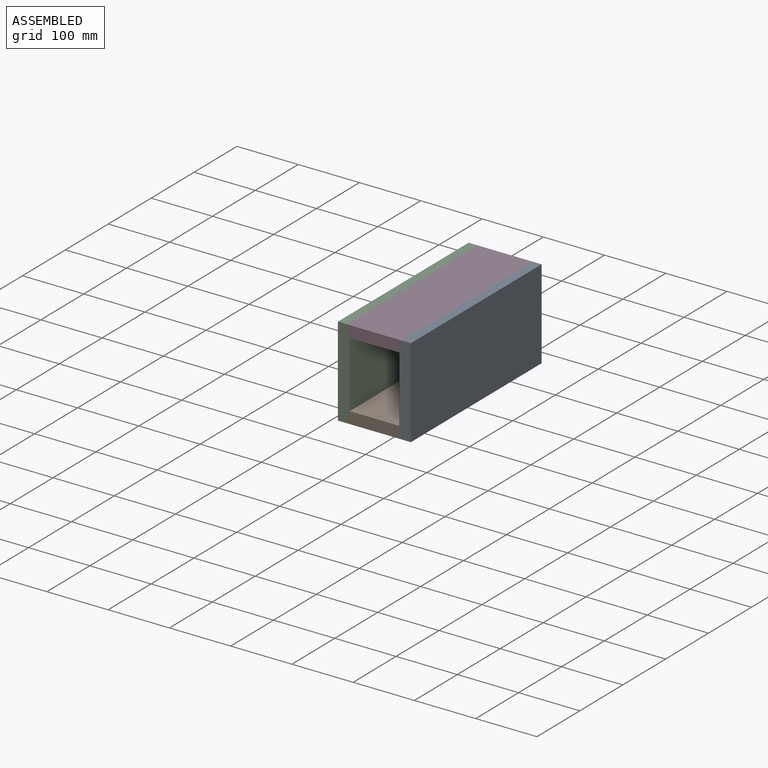
[diagram: assembled view]
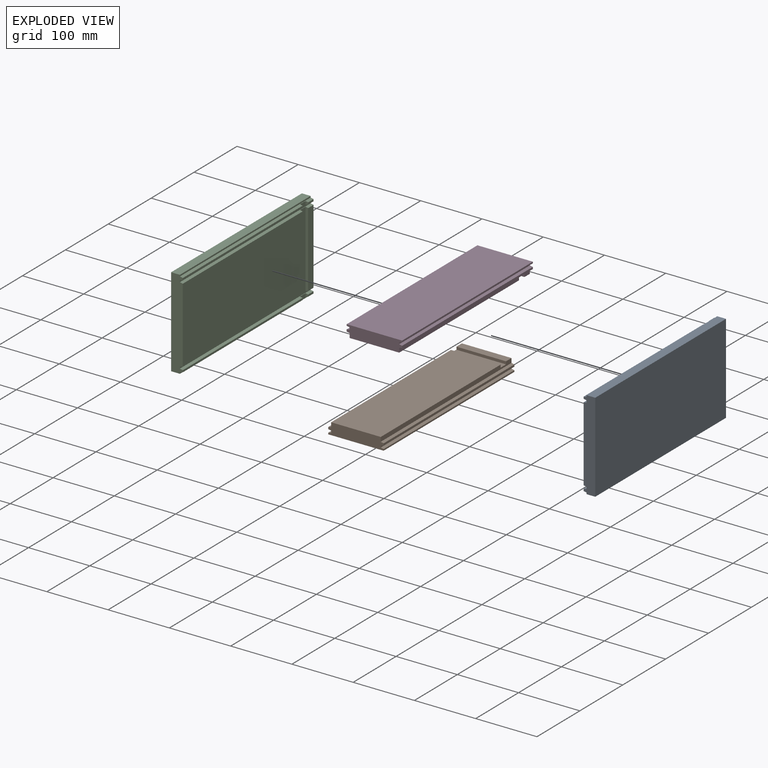
[diagram: exploded view]
GUIDED TOUR — MATED ASSEMBLY (Onshape document 10cae2b9b5128c121bfe2c12, AutoMate assembly 10cae2b9b5128c121bfe2c12_10c8b6ccea02d22713d27644_c6a1b282c4f7143b2811bf77_default)

This assembly has 4 components, labeled P0..P3 below (a component is one placed occurrence of a part; the same part can appear more than once), held together by 3 mates. A mate is a constraint between two components; its type names the relative motion it leaves free:
  FASTENED — locks the two components together rigidly (no relative motion).
Axis/direction vectors are unit vectors and 'through' points are millimeter coordinates, both in the assembly's world frame.

MATES
  1. FASTENED "Fastened 2": P2 <-> P1, direction (0.000, 1.000, 0.000) through (229.31, 161.94, -141.19) mm
  2. FASTENED "Fastened 3": P3 <-> P0, direction (0.000, 1.000, 0.000) through (319.80, 161.94, 4.86) mm
  3. FASTENED "Fastened 1": P2 <-> P3, direction (0.000, 1.000, 0.000) through (229.31, 161.94, 4.86) mm

ASSEMBLY ORDER
  1. P3 — the base component [order verified]
  2. P1 [order verified]
  3. P0 [order verified]
  4. P2 [order verified]
Order-tag legend:
  [order verified] — this step's position reverses a verified removal order: the component was checked to insert without passing through the ones already placed.

Of the 4 components, 4 carry the full construction recipe — the FeatureScript program that regenerates the part's solid from scratch; the rest are supplied as boundary geometry only.
Each toured component is shown spotlighted twice — in the assembled view, then in the exploded view, where a leader line traces a displaced component back to its assembled socket (saturated green if recipe-attached, orange if geometry-only; every other component desaturated gray) — followed by its recipe or geometry summary and the mates that hold it.
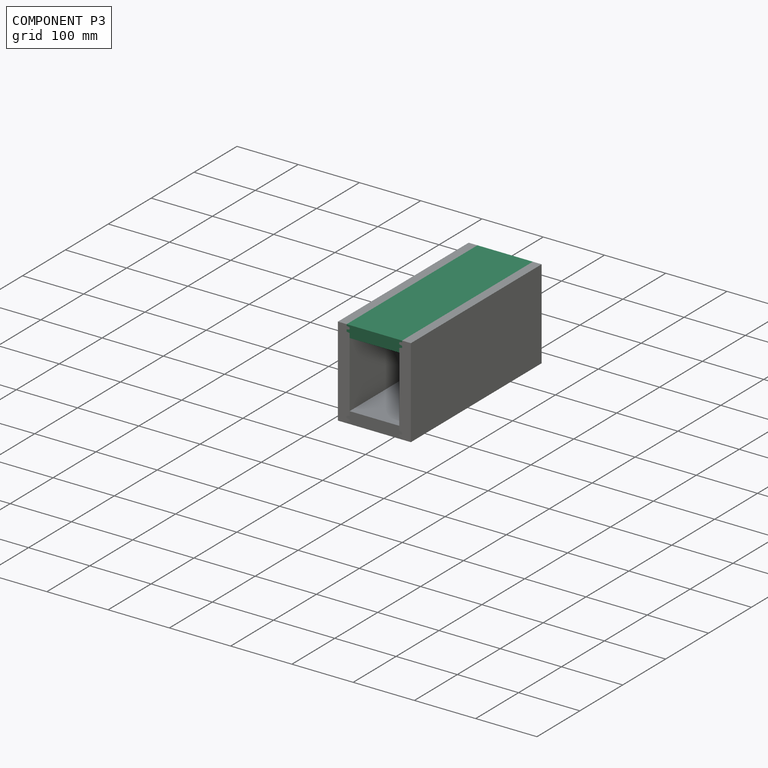
[diagram: component P3 — assembled]
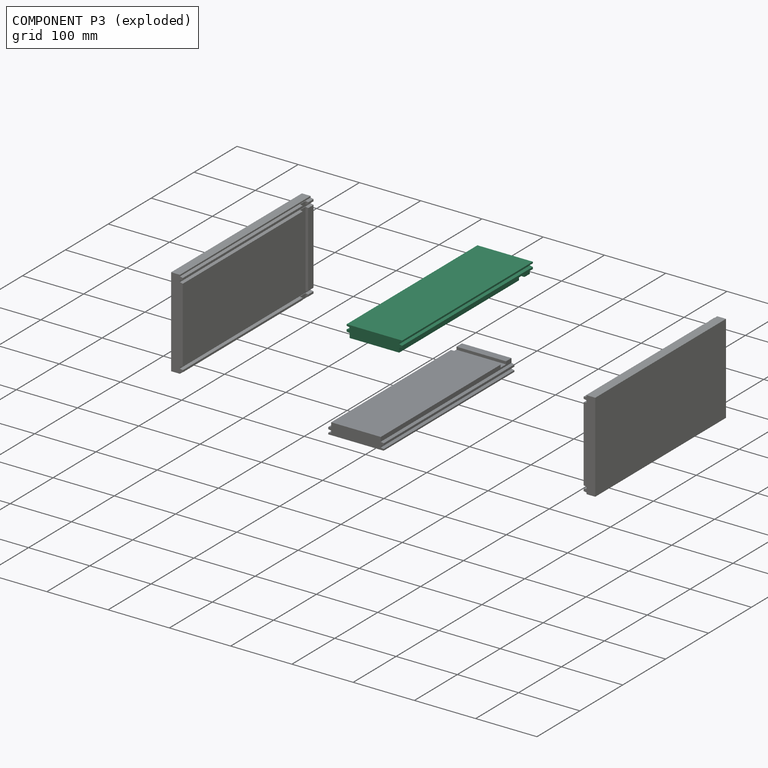
[diagram: component P3 — exploded]
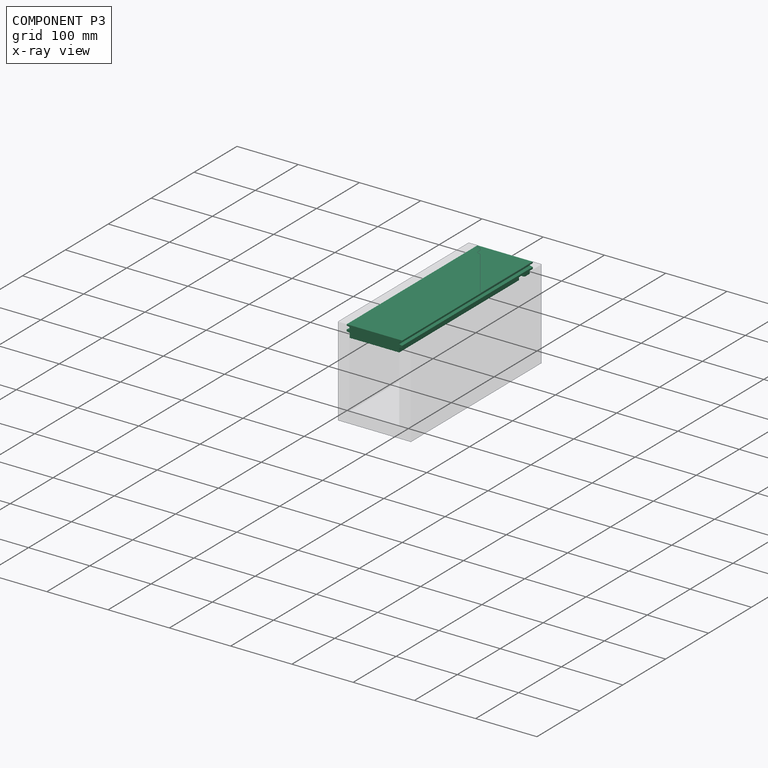
[diagram: component P3 — x-ray view]
COMPONENT P3 — same part as P1 (CADFS 00622176); its construction recipe is shown at P1.
Held by: FASTENED mate "Fastened 3" to P0; FASTENED mate "Fastened 1" to P2.
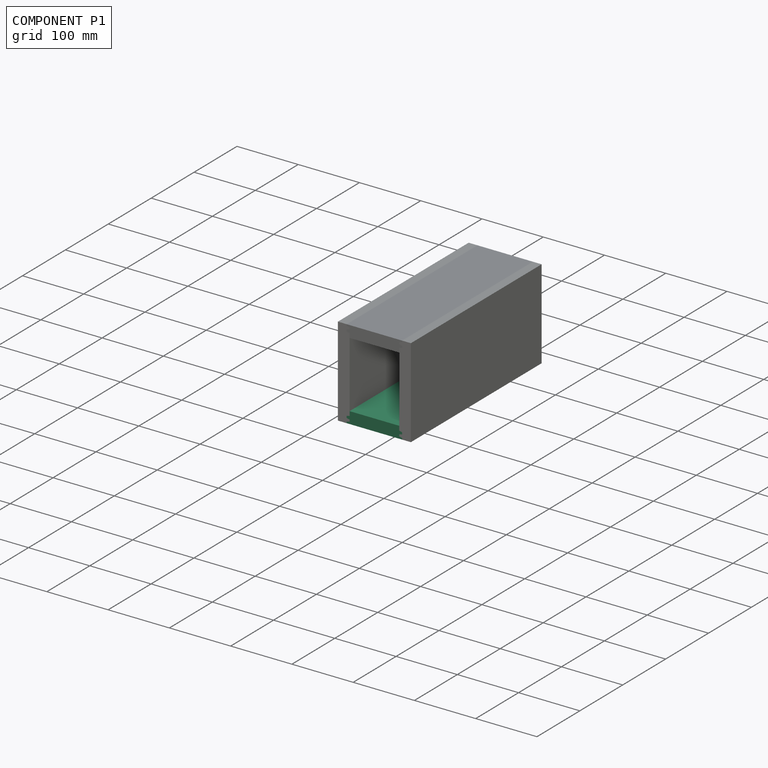
[diagram: component P1 — assembled]
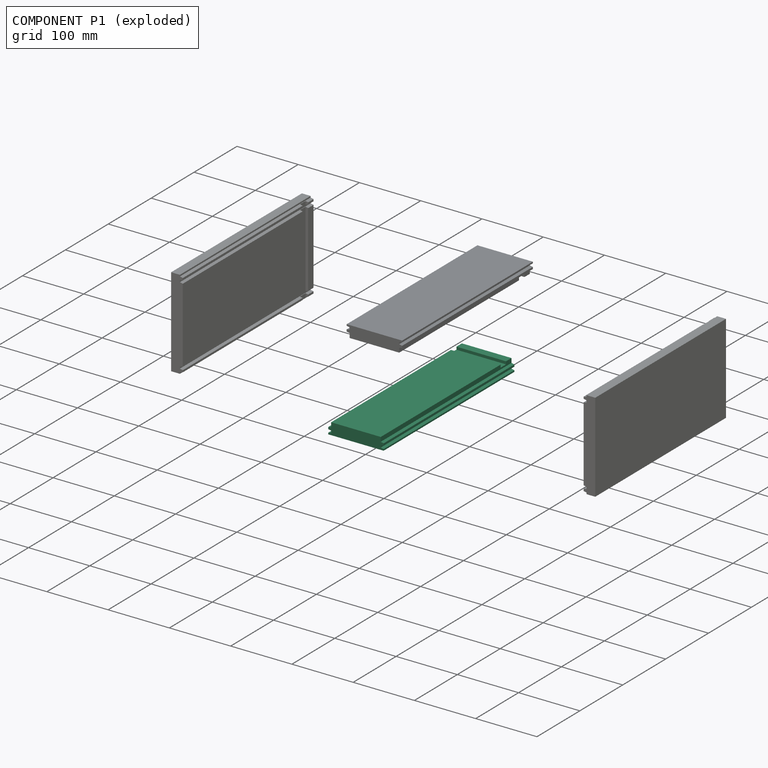
[diagram: component P1 — exploded]
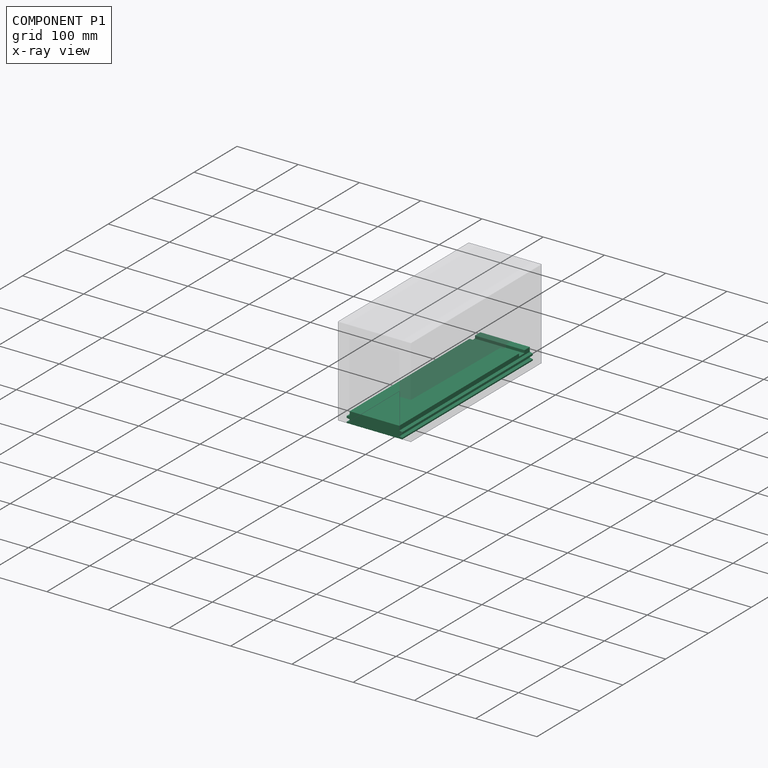
[diagram: component P1 — x-ray view]
COMPONENT P1 — recipe-attached (CADFS 00622176, mesh-verified: the recipe's output STEP matches this component's geometry to below the mesh-comparison resolution (tessellation chordal tolerance ~0.478 mm)).
Held by: FASTENED mate "Fastened 2" to P2.
Construction recipe (FeatureScript — the CAD program that rebuilds this solid; sketch coordinates are in the units given by the * unit suffixes, e.g. mm):

FeatureScript 1511;
import(path : "onshape/std/geometry.fs", version : "1511.0");
import(path : "onshape/std/common.fs", version : "1511.0");
const mm = millimeter;
const VERTEX = EntityType.VERTEX;
const EDGE = EntityType.EDGE;
const FACE = EntityType.FACE;
const BODY = EntityType.BODY;
function v(x, y){return vector(x, y);}
function OD(order){return orderDisambiguation(order);}
function OSD(set){return originalSetDisambiguation(set);}
function TD(topology){return topologyDisambiguation(topology);}
function TDD(query){return trueDependencyDisambiguation(query);}
function sQuery(a, b, c) {return sketchEntityQuery(a, b, c);}

annotation { "Feature Type Name" : "Feature", "Feature Type Description" : "" }
export const myFeature = defineFeature(function(context is Context, id is Id, definition is map)
    precondition{}
    {
        {
            var Q0;
            Q0=qCreatedBy(makeId("Front.planeOp"),FACE);
            var sketch = newSketch(context, id + "F0", { "sketchPlane" : qUnion([Q0])});
            skLineSegment(sketch, "E0.bottom", {"start": v(0, 0) * mm, "end": v(19.05, 0) * mm});
            skLineSegment(sketch, "E0.top", {"start": v(0, 90.49) * mm, "end": v(19.05, 90.49) * mm});
            skLineSegment(sketch, "E0.left", {"start": v(0, 0) * mm, "end": v(0, 90.49) * mm});
            skLineSegment(sketch, "E0.right", {"start": v(19.05, 0) * mm, "end": v(19.05, 90.49) * mm});
            skSolve(sketch);
        }
        {
            var Q0;
            Q0 = qSketchRegion(id + "F0", true);
            extrude(context, id + "F1", {"entities" : qUnion([Q0]), "depth" : 304.8 * mm, "offsetDistance" : 25.4 * mm});
        }
        {
            var Q0;
            Q0=qCreatedBy(makeId("Front.planeOp"),FACE);
            cPlane(context, id + "F2", {"entities" : qUnion([Q0]), "cplaneType" : CPlaneType.OFFSET, "offset" : 25.4 * mm, "width" : 152.4 * mm, "height" : 152.4 * mm});
        }
        {
            var Q0;
            Q0=qCreatedBy(id+"F2.planeOp",FACE);
            var sketch = newSketch(context, id + "F3", { "sketchPlane" : qUnion([Q0])});
            skLineSegment(sketch, "E1.bottom", {"start": v(-8.2, 0) * mm, "end": v(4.5, 0) * mm});
            skLineSegment(sketch, "E1.top", {"start": v(-8.2, 101.6) * mm, "end": v(4.5, 101.6) * mm});
            skLineSegment(sketch, "E1.left", {"start": v(-8.2, 0) * mm, "end": v(-8.2, 101.6) * mm});
            skLineSegment(sketch, "E1.right", {"start": v(4.5, 0) * mm, "end": v(4.5, 101.6) * mm});
            skSolve(sketch);
        }
        {
            var Q0;
            Q0 = qSketchRegion(id + "F3", true);
            extrude(context, id + "F4", {"entities" : qUnion([Q0]), "operationType" : NewBodyOperationType.REMOVE, "oppositeDirection" : true, "depth" : 12.7 * mm, "offsetDistance" : 25.4 * mm});
        }
        {
            var Q0;
            Q0=qCreatedBy(makeId("Front.planeOp"),FACE);
            var sketch = newSketch(context, id + "F5", { "sketchPlane" : qUnion([Q0])});
            skLineSegment(sketch, "E2", {"start": v(26.19, -5.09) * mm, "end": v(-2.39, -5.09) * mm});
            skLineSegment(sketch, "E3", {"start": v(-2.39, -5.09) * mm, "end": v(-2.39, 4.76) * mm});
            skLineSegment(sketch, "E4", {"start": v(-2.39, 4.76) * mm, "end": v(7.14, 4.76) * mm});
            skLineSegment(sketch, "E5", {"start": v(7.14, 4.76) * mm, "end": v(8.2, 0) * mm});
            skLineSegment(sketch, "E6", {"start": v(8.2, 0) * mm, "end": v(11.37, 0) * mm});
            skLineSegment(sketch, "E7", {"start": v(11.37, 0) * mm, "end": v(12.43, 4.76) * mm});
            skLineSegment(sketch, "E8", {"start": v(12.43, 4.76) * mm, "end": v(15.6, 4.76) * mm});
            skLineSegment(sketch, "E9", {"start": v(15.6, 4.76) * mm, "end": v(16.66, 0) * mm});
            skLineSegment(sketch, "E10", {"start": v(16.66, 0) * mm, "end": v(26.19, 0) * mm});
            skLineSegment(sketch, "E11", {"start": v(26.19, 0) * mm, "end": v(26.19, -5.09) * mm});
            skPoint(sketch, "E12.positionSnap0", {"position": v(11.9, -5.09) * mm});
            skPoint(sketch, "E13", {"position": v(8.2, 0) * mm});
            skSolve(sketch);
        }
        {
            var Q0;
            Q0 = qSketchRegion(id + "F5", true);
            extrude(context, id + "F6", {"entities" : qUnion([Q0]), "operationType" : NewBodyOperationType.REMOVE, "depth" : 304.8 * mm, "offsetDistance" : 25.4 * mm});
        }
        {
            var Q0;
            Q0=qCreatedBy(makeId("Front.planeOp"),FACE);
            var sketch = newSketch(context, id + "F7", { "sketchPlane" : qUnion([Q0])});
            skLineSegment(sketch, "E14", {"start": v(26.19, 95.58) * mm, "end": v(-2.39, 95.58) * mm});
            skLineSegment(sketch, "E15.MirrorCS", {"start": v(12.43, 85.73) * mm, "end": v(15.6, 85.73) * mm});
            skLineSegment(sketch, "E16.MirrorCS", {"start": v(26.19, 90.49) * mm, "end": v(26.19, 95.58) * mm});
            skLineSegment(sketch, "E17.MirrorCS", {"start": v(8.2, 90.49) * mm, "end": v(11.37, 90.49) * mm});
            skLineSegment(sketch, "E18.MirrorCS", {"start": v(15.6, 85.73) * mm, "end": v(16.66, 90.49) * mm});
            skLineSegment(sketch, "E19.MirrorCS", {"start": v(16.66, 90.49) * mm, "end": v(26.19, 90.49) * mm});
            skLineSegment(sketch, "E20.MirrorCS", {"start": v(11.37, 90.49) * mm, "end": v(12.43, 85.72) * mm});
            skLineSegment(sketch, "E21.MirrorCS", {"start": v(7.14, 85.73) * mm, "end": v(8.2, 90.49) * mm});
            skLineSegment(sketch, "E22.MirrorCS", {"start": v(-2.39, 85.73) * mm, "end": v(7.14, 85.73) * mm});
            skLineSegment(sketch, "E23.MirrorCS", {"start": v(-2.39, 95.58) * mm, "end": v(-2.39, 85.73) * mm});
            skLineSegment(sketch, "E24", {"start": v(-2.39, 95.58) * mm, "end": v(26.19, 95.58) * mm});
            skPoint(sketch, "E25", {"position": v(11.9, 95.58) * mm});
            skPoint(sketch, "E26", {"position": v(8.2, 90.49) * mm});
            skSolve(sketch);
        }
        {
            var Q0;
            Q0 = qSketchRegion(id + "F7", true);
            extrude(context, id + "F8", {"entities" : qUnion([Q0]), "operationType" : NewBodyOperationType.REMOVE, "depth" : 304.8 * mm, "offsetDistance" : 25.4 * mm});
        }
    });
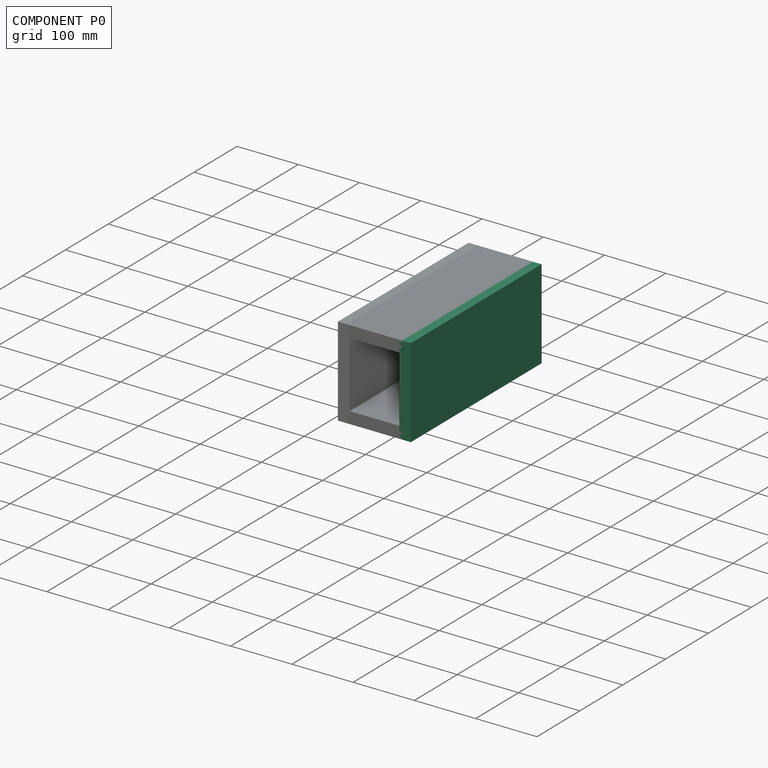
[diagram: component P0 — assembled]
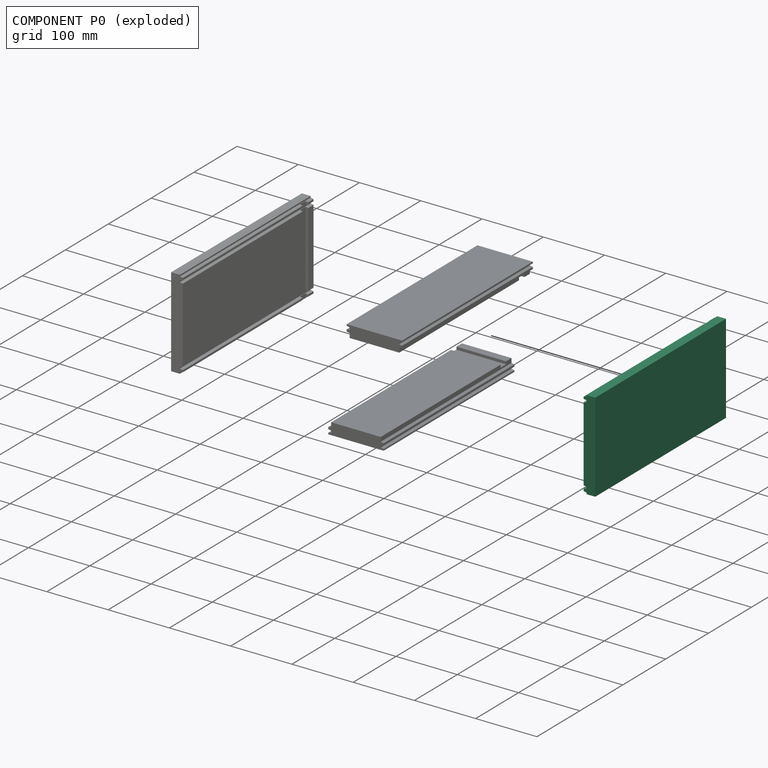
[diagram: component P0 — exploded]
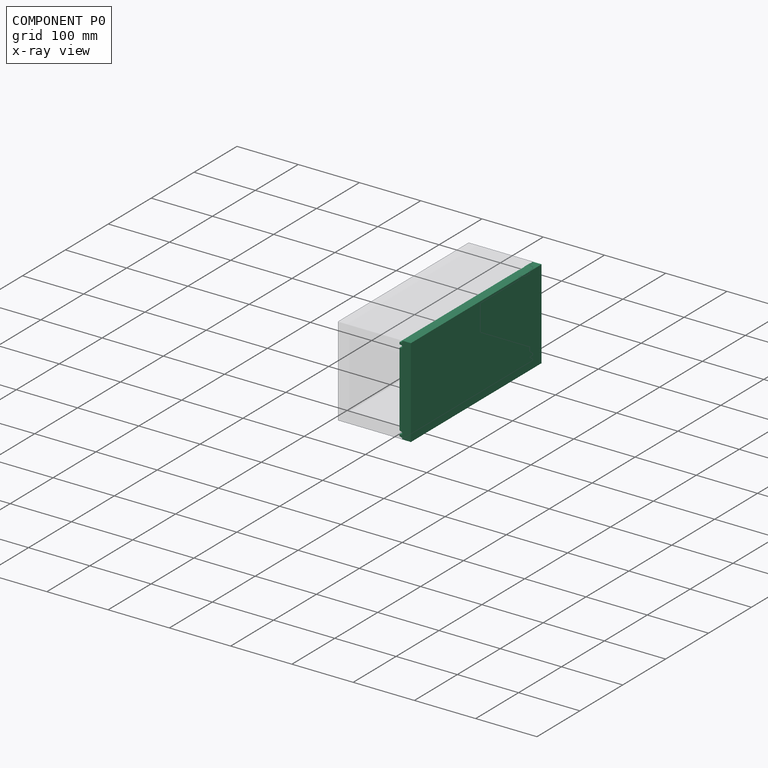
[diagram: component P0 — x-ray view]
COMPONENT P0 — recipe-attached (CADFS 00622175, mesh-verified: the recipe's output STEP matches this component's geometry to below the mesh-comparison resolution (tessellation chordal tolerance ~0.508 mm)).
Held by: FASTENED mate "Fastened 3" to P3.
Construction recipe (FeatureScript — the CAD program that rebuilds this solid; sketch coordinates are in the units given by the * unit suffixes, e.g. mm):

FeatureScript 1511;
import(path : "onshape/std/geometry.fs", version : "1511.0");
import(path : "onshape/std/common.fs", version : "1511.0");
const mm = millimeter;
const VERTEX = EntityType.VERTEX;
const EDGE = EntityType.EDGE;
const FACE = EntityType.FACE;
const BODY = EntityType.BODY;
function v(x, y){return vector(x, y);}
function OD(order){return orderDisambiguation(order);}
function OSD(set){return originalSetDisambiguation(set);}
function TD(topology){return topologyDisambiguation(topology);}
function TDD(query){return trueDependencyDisambiguation(query);}
function sQuery(a, b, c) {return sketchEntityQuery(a, b, c);}

annotation { "Feature Type Name" : "Feature", "Feature Type Description" : "" }
export const myFeature = defineFeature(function(context is Context, id is Id, definition is map)
    precondition{}
    {
        {
            var Q0;
            Q0=qCreatedBy(makeId("Front.planeOp"),FACE);
            var sketch = newSketch(context, id + "F0", { "sketchPlane" : qUnion([Q0])});
            skLineSegment(sketch, "E0.bottom", {"start": v(0, 0) * mm, "end": v(19.05, 0) * mm});
            skLineSegment(sketch, "E0.top", {"start": v(0, 146.05) * mm, "end": v(19.05, 146.05) * mm});
            skLineSegment(sketch, "E0.left", {"start": v(0, 0) * mm, "end": v(0, 146.05) * mm});
            skLineSegment(sketch, "E0.right", {"start": v(19.05, 0) * mm, "end": v(19.05, 146.05) * mm});
            skSolve(sketch);
        }
        {
            var Q0;
            Q0 = qSketchRegion(id + "F0", true);
            extrude(context, id + "F1", {"entities" : qUnion([Q0]), "depth" : 304.8 * mm, "offsetDistance" : 25.4 * mm});
        }
        {
            var Q0;
            Q0=qCreatedBy(makeId("Front.planeOp"),FACE);
            cPlane(context, id + "F2", {"entities" : qUnion([Q0]), "cplaneType" : CPlaneType.OFFSET, "offset" : 25.4 * mm, "width" : 152.4 * mm, "height" : 152.4 * mm});
        }
        {
            var Q0;
            Q0=qCreatedBy(makeId("Front.planeOp"),FACE);
            var sketch = newSketch(context, id + "F3", { "sketchPlane" : qUnion([Q0])});
            skLineSegment(sketch, "E1", {"start": v(24.14, 124.61) * mm, "end": v(24.14, 153.19) * mm});
            skLineSegment(sketch, "E2.MirrorCS", {"start": v(14.29, 138.37) * mm, "end": v(14.29, 135.2) * mm});
            skLineSegment(sketch, "E3.MirrorCS", {"start": v(19.05, 124.61) * mm, "end": v(24.14, 124.61) * mm});
            skLineSegment(sketch, "E4.MirrorCS", {"start": v(19.05, 142.6) * mm, "end": v(19.05, 139.43) * mm});
            skLineSegment(sketch, "E5.MirrorCS", {"start": v(14.29, 135.2) * mm, "end": v(19.05, 134.14) * mm});
            skLineSegment(sketch, "E6.MirrorCS", {"start": v(19.05, 134.14) * mm, "end": v(19.05, 124.61) * mm});
            skLineSegment(sketch, "E7.MirrorCS", {"start": v(19.05, 139.43) * mm, "end": v(14.29, 138.37) * mm});
            skLineSegment(sketch, "E8.MirrorCS", {"start": v(14.29, 143.66) * mm, "end": v(19.05, 142.6) * mm});
            skLineSegment(sketch, "E9.MirrorCS", {"start": v(14.29, 153.19) * mm, "end": v(14.29, 143.66) * mm});
            skLineSegment(sketch, "E10.MirrorCS", {"start": v(24.14, 153.19) * mm, "end": v(14.29, 153.19) * mm});
            skLineSegment(sketch, "E11", {"start": v(24.14, 153.19) * mm, "end": v(24.14, 124.61) * mm});
            skPoint(sketch, "E12", {"position": v(24.14, 138.9) * mm});
            skPoint(sketch, "E13", {"position": v(19.05, 142.6) * mm});
            skSolve(sketch);
        }
        {
            var Q0;
            Q0 = qSketchRegion(id + "F3", true);
            extrude(context, id + "F4", {"entities" : qUnion([Q0]), "operationType" : NewBodyOperationType.REMOVE, "depth" : 304.8 * mm, "offsetDistance" : 25.4 * mm});
        }
        {
            var Q0;
            Q0=qCreatedBy(makeId("Front.planeOp"),FACE);
            var sketch = newSketch(context, id + "F5", { "sketchPlane" : qUnion([Q0])});
            skLineSegment(sketch, "E14", {"start": v(24.14, 21.44) * mm, "end": v(24.14, -7.14) * mm});
            skLineSegment(sketch, "E15", {"start": v(24.14, -7.14) * mm, "end": v(14.29, -7.14) * mm});
            skLineSegment(sketch, "E16", {"start": v(14.29, -7.14) * mm, "end": v(14.29, 2.39) * mm});
            skLineSegment(sketch, "E17", {"start": v(14.29, 2.39) * mm, "end": v(19.05, 3.45) * mm});
            skLineSegment(sketch, "E18", {"start": v(19.05, 3.45) * mm, "end": v(19.05, 6.62) * mm});
            skLineSegment(sketch, "E19", {"start": v(19.05, 6.62) * mm, "end": v(14.29, 7.68) * mm});
            skLineSegment(sketch, "E20", {"start": v(14.29, 7.68) * mm, "end": v(14.29, 10.85) * mm});
            skLineSegment(sketch, "E21", {"start": v(14.29, 10.85) * mm, "end": v(19.05, 11.91) * mm});
            skLineSegment(sketch, "E22", {"start": v(19.05, 11.91) * mm, "end": v(19.05, 21.44) * mm});
            skLineSegment(sketch, "E23", {"start": v(19.05, 21.44) * mm, "end": v(24.14, 21.44) * mm});
            skPoint(sketch, "E24.positionSnap0", {"position": v(24.14, 7.15) * mm});
            skPoint(sketch, "E25", {"position": v(19.05, 3.45) * mm});
            skSolve(sketch);
        }
        {
            var Q0;
            Q0 = qSketchRegion(id + "F5", true);
            extrude(context, id + "F6", {"entities" : qUnion([Q0]), "operationType" : NewBodyOperationType.REMOVE, "depth" : 304.8 * mm, "offsetDistance" : 25.4 * mm});
        }
        {
            var Q0;
            Q0=qCreatedBy(id+"F2.planeOp",FACE);
            var sketch = newSketch(context, id + "F7", { "sketchPlane" : qUnion([Q0])});
            skLineSegment(sketch, "E26.bottom", {"start": v(27.5, 0) * mm, "end": v(14.8, 0) * mm});
            skLineSegment(sketch, "E26.top", {"start": v(27.5, 146.05) * mm, "end": v(14.8, 146.05) * mm});
            skLineSegment(sketch, "E26.left", {"start": v(27.5, 0) * mm, "end": v(27.5, 146.05) * mm});
            skLineSegment(sketch, "E26.right", {"start": v(14.8, 0) * mm, "end": v(14.8, 146.05) * mm});
            skSolve(sketch);
        }
        {
            var Q0;
            Q0 = qSketchRegion(id + "F7", true);
            extrude(context, id + "F8", {"entities" : qUnion([Q0]), "operationType" : NewBodyOperationType.REMOVE, "oppositeDirection" : true, "depth" : 12.7 * mm, "offsetDistance" : 25.4 * mm});
        }
    });
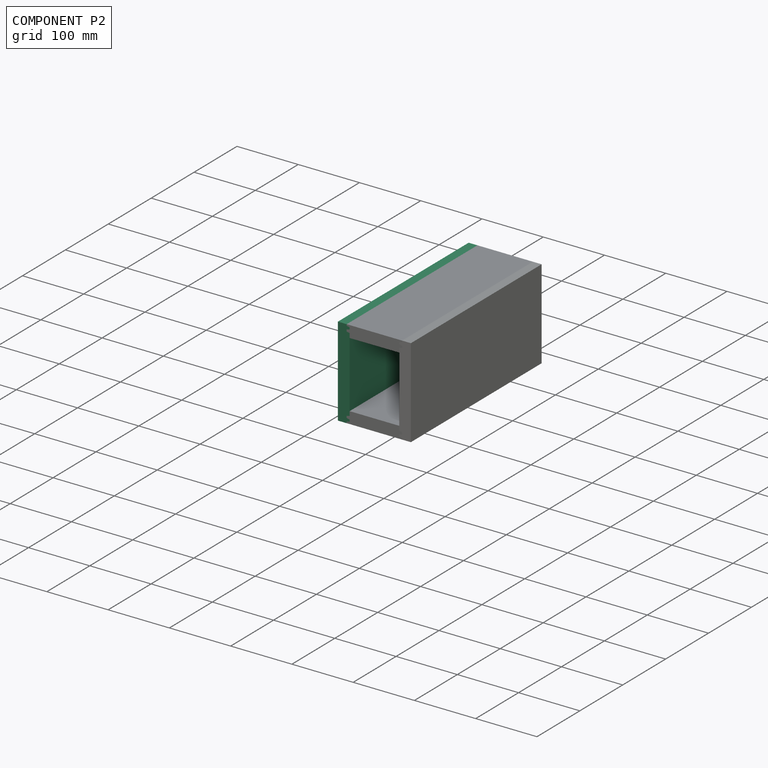
[diagram: component P2 — assembled]
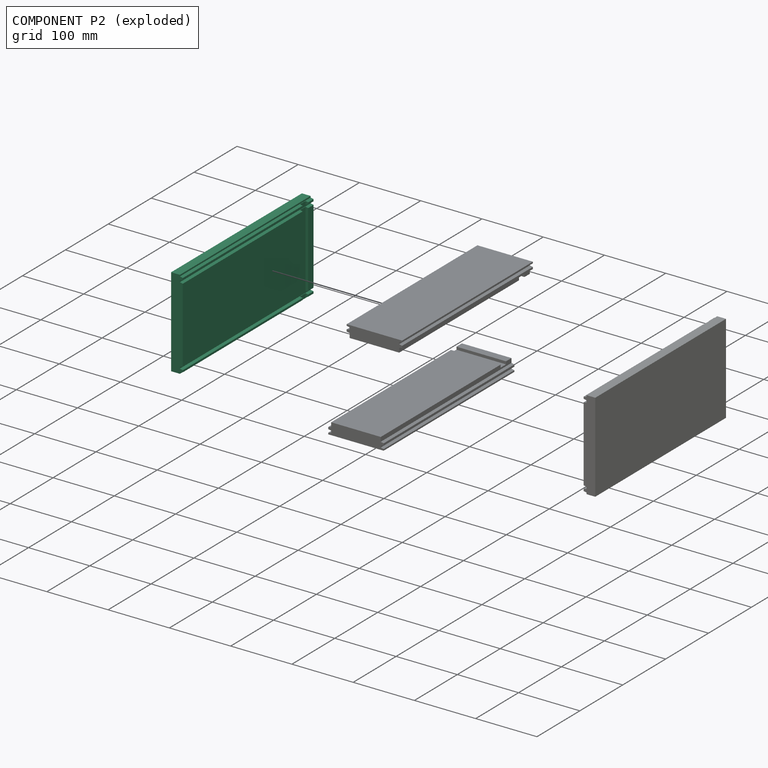
[diagram: component P2 — exploded]
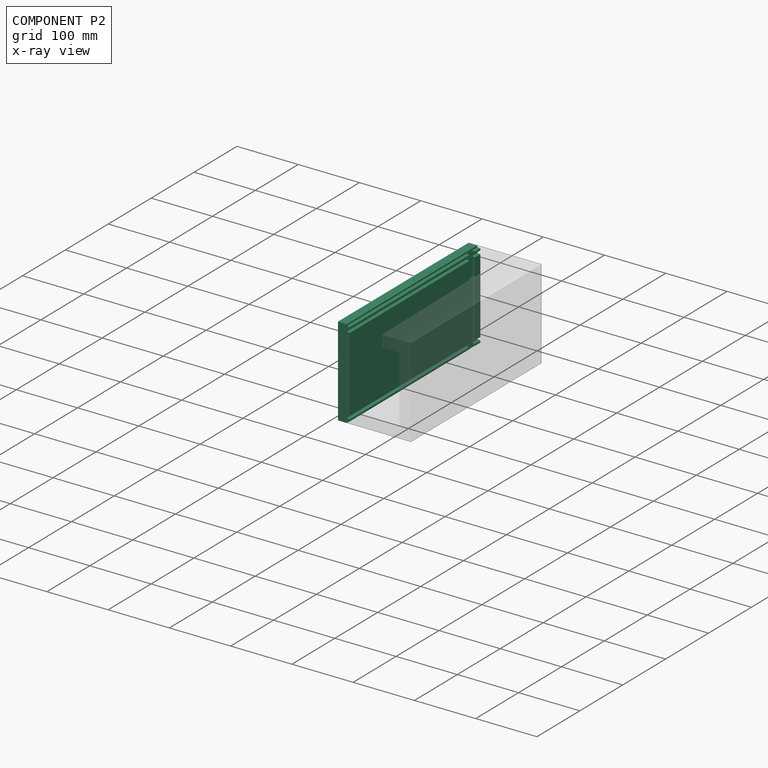
[diagram: component P2 — x-ray view]
COMPONENT P2 — same part as P0 (CADFS 00622175); its construction recipe is shown at P0.
Held by: FASTENED mate "Fastened 2" to P1; FASTENED mate "Fastened 1" to P3.
PROVENANCE & LICENSES
Assembly (occurrences, transforms, mates, per-part STEP geometry): AutoMate dataset, Zenodo record 7776208, CC0.
Construction recipes: CADFS (HuggingFace VladPyatov/CADFS, CC-BY-4.0, layered over the ABC dataset), FeatureScript reconstruction programs keyed by ABC model id.
Join: ABC meta listings map ABC model id -> Onshape documentId; within a shared document, parts are matched by geometric signature (bounding-box dims + volume at 0.1% relative tolerance, exact B-rep face/solid counts).
Verification: 4 of this assembly's 4 components carry a recipe attachment, and every attachment is mesh-verified: the CADFS STEP and the AutoMate member STEP were compared as meshes in their shared local frame (symmetric sampled-point-to-mesh distance); worst across the 4 attachments: below the mesh-comparison resolution (tessellation chordal tolerance ~0.508 mm) on a 339 mm part.
Renders: orthographic iso camera (az 35 / el 25); the floor grid conveys scale (grid pitch printed in each image; no ruler). In the exploded view each component is displaced by its stored offset vector: the offsets alone carry the explosion direction (mate normal/axis signs are not orientation cues and do not encode it), and separation distances are assigned per mate-chain, not proportionally to assembly-order depth.
